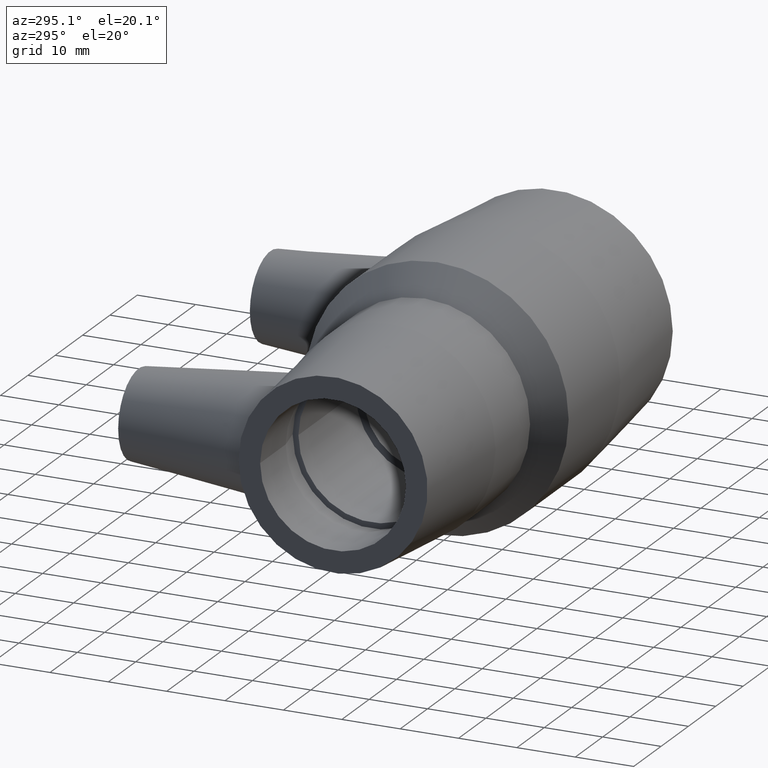
[diagram: clean part render]
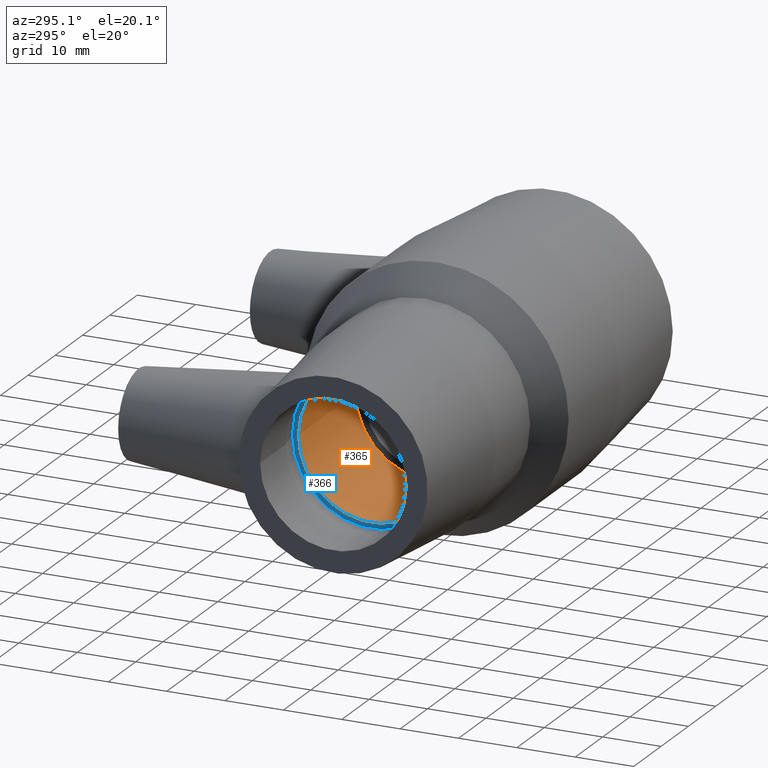
[diagram: same view with the hole feature highlighted: cylindrical wall and planar end face, labeled with their STEP entity ids]
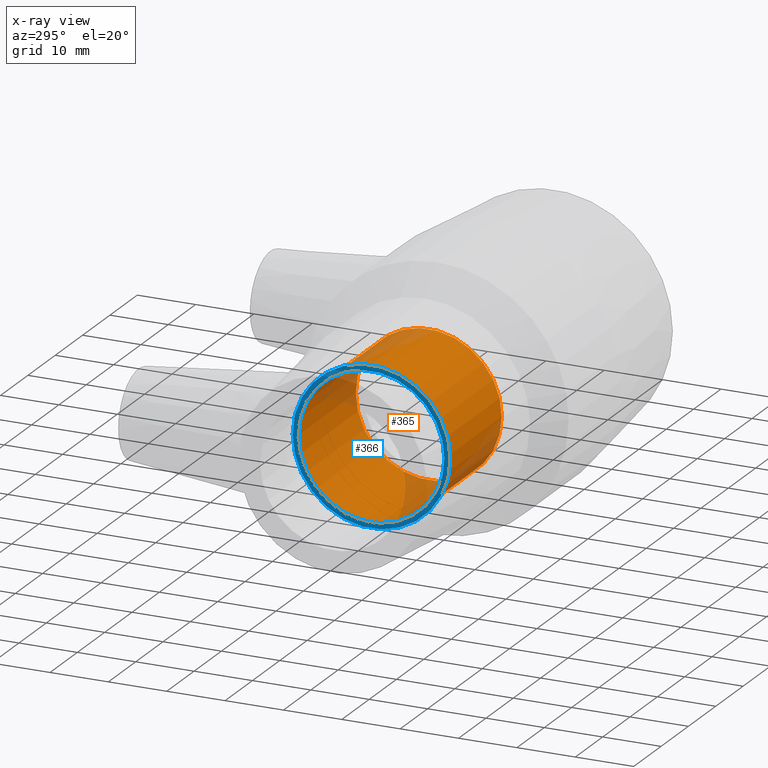
[diagram: x-ray of the same camera — body ghosted, the hole faces saturated]
A machine part, auxiliary view. The highlighted faces form one hole feature of diameter 25 mm: the cylindrical wall (entity #365, orange) and its adjacent planar end face (entity #366, blue) — they share a circular edge in the B-rep.
The next image is the same camera in x-ray (body ghosted, the hole faces saturated) — the bore reads through the body.
Wall:
#52=FACE_BOUND('',#152,.T.);
#67=CYLINDRICAL_SURFACE('',#424,12.5);
#95=FACE_OUTER_BOUND('',#151,.T.);
#151=EDGE_LOOP('',(#313));
#152=EDGE_LOOP('',(#314));
#187=CIRCLE('',#423,12.5);
#188=CIRCLE('',#425,12.5);
#219=VERTEX_POINT('',#718);
#220=VERTEX_POINT('',#721);
#253=EDGE_CURVE('',#219,#219,#187,.T.);
#254=EDGE_CURVE('',#220,#220,#188,.T.);
#313=ORIENTED_EDGE('',*,*,#254,.F.);
#314=ORIENTED_EDGE('',*,*,#253,.T.);
#365=ADVANCED_FACE('',(#95,#52),#67,.F.);
#423=AXIS2_PLACEMENT_3D('',#719,#537,#538);
#424=AXIS2_PLACEMENT_3D('',#720,#539,#540);
#425=AXIS2_PLACEMENT_3D('',#722,#541,#542);
#537=DIRECTION('center_axis',(1.,1.83697019872103E-16,0.));
#538=DIRECTION('ref_axis',(0.,0.,-1.));
#539=DIRECTION('center_axis',(1.,1.83697019872103E-16,0.));
#540=DIRECTION('ref_axis',(-1.96131485542617E-16,1.,0.));
#541=DIRECTION('center_axis',(1.,1.83697019872103E-16,0.));
#542=DIRECTION('ref_axis',(0.,0.,-1.));
#718=CARTESIAN_POINT('',(-5.5,12.5,0.));
#719=CARTESIAN_POINT('Origin',(-5.49999999999999,6.4293956955236E-15,0.));
#720=CARTESIAN_POINT('Origin',(-16.,4.50057698686652E-15,0.));
#721=CARTESIAN_POINT('',(-26.5,12.5,0.));
#722=CARTESIAN_POINT('Origin',(-26.5,2.57175827820944E-15,0.));
End face:
#53=FACE_BOUND('',#154,.T.);
#96=FACE_OUTER_BOUND('',#153,.T.);
#153=EDGE_LOOP('',(#315));
#154=EDGE_LOOP('',(#316));
#188=CIRCLE('',#425,12.5);
#189=CIRCLE('',#427,13.4919306211268);
#220=VERTEX_POINT('',#721);
#221=VERTEX_POINT('',#724);
#254=EDGE_CURVE('',#220,#220,#188,.T.);
#255=EDGE_CURVE('',#221,#221,#189,.T.);
#315=ORIENTED_EDGE('',*,*,#255,.F.);
#316=ORIENTED_EDGE('',*,*,#254,.T.);
#337=PLANE('',#426);
#366=ADVANCED_FACE('',(#96,#53),#337,.T.);
#425=AXIS2_PLACEMENT_3D('',#722,#541,#542);
#426=AXIS2_PLACEMENT_3D('',#723,#543,#544);
#427=AXIS2_PLACEMENT_3D('',#725,#545,#546);
#541=DIRECTION('center_axis',(1.,1.83697019872103E-16,0.));
#542=DIRECTION('ref_axis',(0.,0.,-1.));
#543=DIRECTION('center_axis',(-1.,-1.83697019872103E-16,0.));
#544=DIRECTION('ref_axis',(0.,0.,1.));
#545=DIRECTION('center_axis',(1.,1.83697019872103E-16,0.));
#546=DIRECTION('ref_axis',(0.,0.,-1.));
#721=CARTESIAN_POINT('',(-26.5,12.5,0.));
#722=CARTESIAN_POINT('Origin',(-26.5,2.57175827820944E-15,0.));
#723=CARTESIAN_POINT('Origin',(-26.5,13.4919306211268,0.));
#724=CARTESIAN_POINT('',(-26.5,13.4919306211268,0.));
#725=CARTESIAN_POINT('Origin',(-26.5,2.57175827820944E-15,0.));